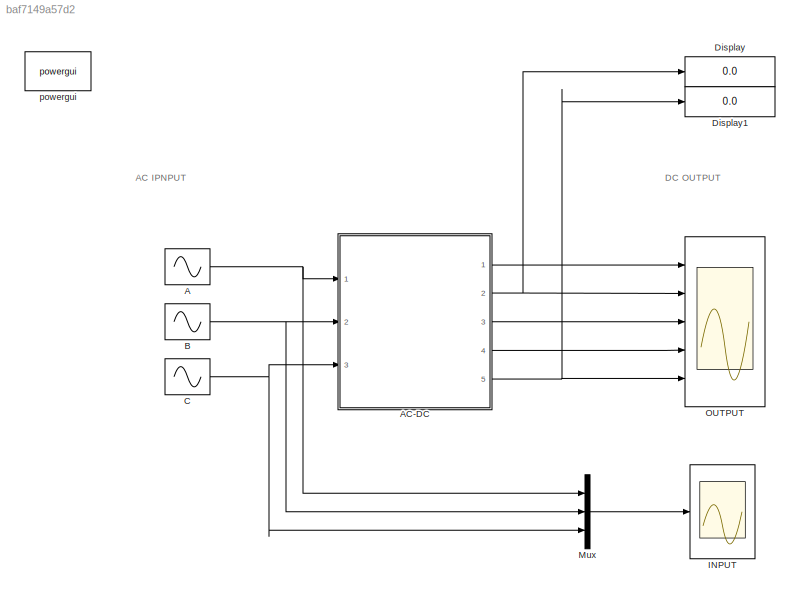
MODEL slx_baf7149a57d2
KIND model
CONFIG AbsTol = auto
CONFIG FixedStep = auto
CONFIG MaxStep = auto
CONFIG MinStep = auto
CONFIG RelTol = 1e-3
CONFIG SampleTimeConstraint = Unconstrained
CONFIG Solver = ode45
CONFIG SolverMode = Auto
CONFIG SolverName = ode45
CONFIG StartTime = 0.0
CONFIG StopTime = 0.1
BLOCK [Sin] A
  Amplitude = 230
  Frequency = 2*pi*60
  Ports = [0, 1]
  SampleTime = 0
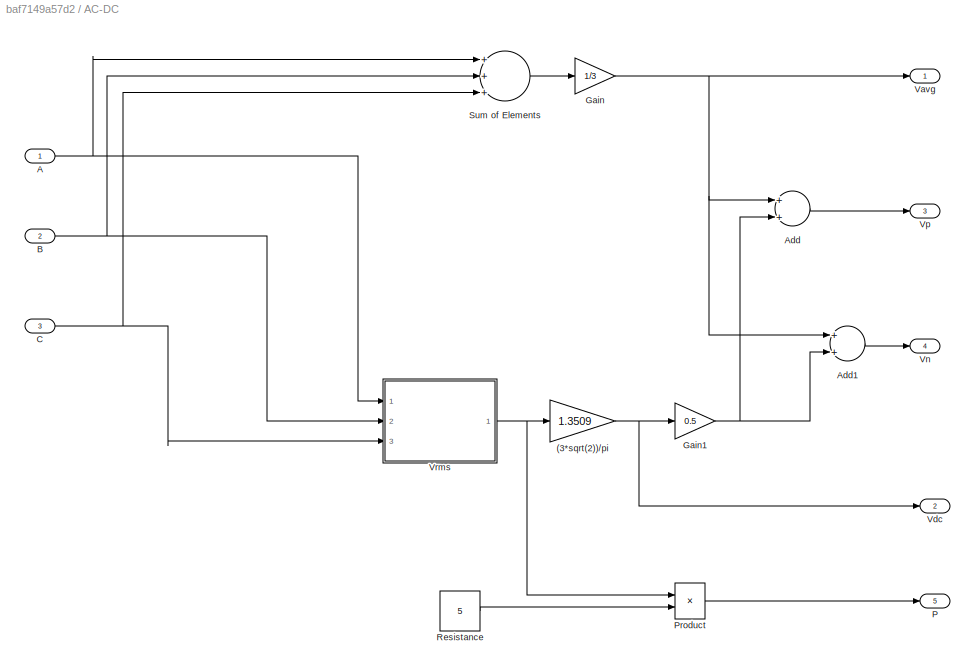
BLOCK [SubSystem] AC-DC
  Ports = [3, 5]
  RequestExecContextInheritance = off
BLOCK [Gain] AC-DC/(3*sqrt(2))//pi
  Gain = 1.3509
  OutDataTypeStr = Inherit: Inherit via internal rule
  ParamDataTypeStr = Inherit: Inherit via internal rule
  SaturateOnIntegerOverflow = off
BLOCK [Inport] AC-DC/A
  IconDisplay = Port number
BLOCK [Sum] AC-DC/Add
  InputSameDT = off
  OutDataTypeStr = Inherit: Inherit via internal rule
  Ports = [2, 1]
  SaturateOnIntegerOverflow = off
BLOCK [Sum] AC-DC/Add1
  InputSameDT = off
  OutDataTypeStr = Inherit: Inherit via internal rule
  Ports = [2, 1]
  SaturateOnIntegerOverflow = off
BLOCK [Inport] AC-DC/B
  IconDisplay = Port number
  Port = 2
BLOCK [Inport] AC-DC/C
  IconDisplay = Port number
  Port = 3
BLOCK [Gain] AC-DC/Gain
  Gain = 1/3
  OutDataTypeStr = Inherit: Inherit via internal rule
  ParamDataTypeStr = Inherit: Inherit via internal rule
  SaturateOnIntegerOverflow = off
BLOCK [Gain] AC-DC/Gain1
  Gain = 0.5
  OutDataTypeStr = Inherit: Inherit via internal rule
  ParamDataTypeStr = Inherit: Inherit via internal rule
  SaturateOnIntegerOverflow = off
BLOCK [Outport] AC-DC/P
  IconDisplay = Port number
  Port = 5
BLOCK [Product] AC-DC/Product
  InputSameDT = off
  OutDataTypeStr = Inherit: Inherit via internal rule
  Ports = [2, 1]
  RndMeth = Floor
  SaturateOnIntegerOverflow = off
BLOCK [Constant] AC-DC/Resistance
  Value = 5
BLOCK [Sum] AC-DC/Sum of Elements
  InputSameDT = off
  Inputs = +++
  OutDataTypeStr = Inherit: Inherit via internal rule
  Ports = [3, 1]
  SaturateOnIntegerOverflow = off
BLOCK [Outport] AC-DC/Vavg
  IconDisplay = Port number
BLOCK [Outport] AC-DC/Vdc
  IconDisplay = Port number
  Port = 2
BLOCK [Outport] AC-DC/Vn
  IconDisplay = Port number
  Port = 4
BLOCK [Outport] AC-DC/Vp
  IconDisplay = Port number
  Port = 3
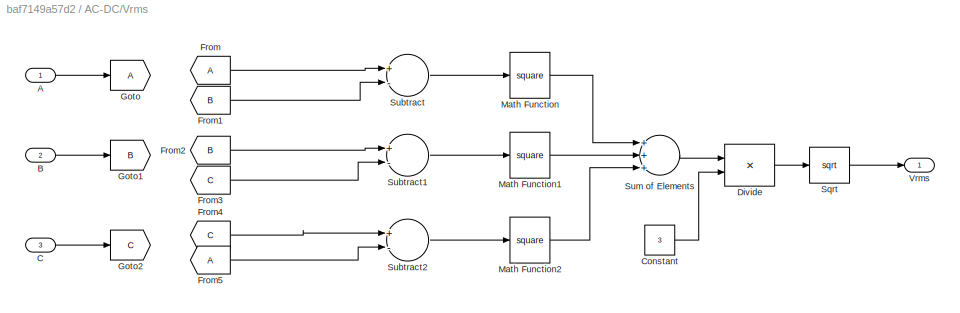
BLOCK [SubSystem] AC-DC/Vrms
  Ports = [3, 1]
  RequestExecContextInheritance = off
BLOCK [Inport] AC-DC/Vrms/A
  IconDisplay = Port number
BLOCK [Inport] AC-DC/Vrms/B
  IconDisplay = Port number
  Port = 2
BLOCK [Inport] AC-DC/Vrms/C
  IconDisplay = Port number
  Port = 3
BLOCK [Constant] AC-DC/Vrms/Constant
  Value = 3
BLOCK [Product] AC-DC/Vrms/Divide
  InputSameDT = off
  Inputs = */
  OutDataTypeStr = Inherit: Inherit via internal rule
  Ports = [2, 1]
  RndMeth = Floor
  SaturateOnIntegerOverflow = off
BLOCK [From] AC-DC/Vrms/From
BLOCK [From] AC-DC/Vrms/From1
  GotoTag = B
BLOCK [From] AC-DC/Vrms/From2
  GotoTag = B
BLOCK [From] AC-DC/Vrms/From3
  GotoTag = C
BLOCK [From] AC-DC/Vrms/From4
  GotoTag = C
BLOCK [From] AC-DC/Vrms/From5
BLOCK [Goto] AC-DC/Vrms/Goto
BLOCK [Goto] AC-DC/Vrms/Goto1
  GotoTag = B
BLOCK [Goto] AC-DC/Vrms/Goto2
  GotoTag = C
BLOCK [Math] AC-DC/Vrms/Math Function
  Operator = square
  Ports = [1, 1]
BLOCK [Math] AC-DC/Vrms/Math Function1
  Operator = square
  Ports = [1, 1]
BLOCK [Math] AC-DC/Vrms/Math Function2
  Operator = square
  Ports = [1, 1]
BLOCK [Sqrt] AC-DC/Vrms/Sqrt
BLOCK [Sum] AC-DC/Vrms/Subtract
  InputSameDT = off
  Inputs = +-
  OutDataTypeStr = Inherit: Inherit via internal rule
  Ports = [2, 1]
  SaturateOnIntegerOverflow = off
BLOCK [Sum] AC-DC/Vrms/Subtract1
  InputSameDT = off
  Inputs = +-
  OutDataTypeStr = Inherit: Inherit via internal rule
  Ports = [2, 1]
  SaturateOnIntegerOverflow = off
BLOCK [Sum] AC-DC/Vrms/Subtract2
  InputSameDT = off
  Inputs = +-
  OutDataTypeStr = Inherit: Inherit via internal rule
  Ports = [2, 1]
  SaturateOnIntegerOverflow = off
BLOCK [Sum] AC-DC/Vrms/Sum of Elements
  InputSameDT = off
  Inputs = +++
  OutDataTypeStr = Inherit: Inherit via internal rule
  Ports = [3, 1]
  SaturateOnIntegerOverflow = off
BLOCK [Outport] AC-DC/Vrms/Vrms
  IconDisplay = Port number
BLOCK [Sin] B
  Amplitude = 230
  Frequency = 2*pi*60
  Phase = 2*pi/3
  Ports = [0, 1]
  SampleTime = 0
BLOCK [Sin] C
  Amplitude = 230
  Frequency = 2*pi*60
  Phase = 4*pi/3
  Ports = [0, 1]
  SampleTime = 0
BLOCK [Display] Display
  Decimation = 1
  Ports = [1]
BLOCK [Display] Display1
  Decimation = 1
  Ports = [1]
BLOCK [Scope] INPUT
  Floating = off
  LimitDataPoints = off
  NumInputPorts = 1
  Ports = [1]
  SaveName = ScopeData1
  ZoomMode = xonly
BLOCK [Mux] Mux
  DisplayOption = bar
  Inputs = 3
  Ports = [3, 1]
BLOCK [Scope] OUTPUT
  Floating = off
  LimitDataPoints = off
  NumInputPorts = 5
  Ports = [5]
  YMax = 5~5~5~5~5
  YMin = -5~-5~-5~-5~-5
BLOCK [Reference] powergui  REF=powerlib/powergui
  DisableRonSwitches = off
  DisableSnubberDevices = off
  DisableVfSwitches = off
  DisplayEquations = off
  DisplayStyle = 1
  EnableUseOfTLC = off
  ErrMax = 1e-4
  Frange = [0:2:500]
  FreqAxis = off
  FunctionMessages = off
  HookPort = off
  Interpol = off
  Iterations = 50
  MaxFrequency = 1000
  Pbase = 100e6
  Ports = []
  Priority = 1
  ResistiveCurrentMeasurement = off
  RestoreLinks = warning
  RmsSteady = 1
  SPID = off
  SampleTime = 50e-6
  ShowGrid = off
  SolverType = Tustin/Backward Euler (TBE)
  SourceBlock = powerlib/powergui
  SourceType = PSB option menu block
  StartTime = 0.0
  SwTol = 0
  Ts = 100
  UnitsV = kV
  UnitsW = MW
  UserDataPersistent = on
  Xlog = on
  Ylog = off
  ZoomFFT = off
  buscounter = 0
  cycles = 1
  display = off
  echomessages = off
  frequency = 60
  frequencyindice = 60
  frequencyindicesteady = 1
  fundamental = 60
  methode = off
  save = off
  structure = 0
  variable = ZData
  x0status = blocks
ANNOTATION (root): AC IPNPUT
ANNOTATION (root): DC OUTPUT
NET A:1 -> AC-DC:1, Mux:1
NET AC-DC/(3*sqrt(2))//pi:1 -> AC-DC/Gain1:1, AC-DC/Vdc:1
NET AC-DC/A:1 -> AC-DC/Sum of Elements:1, AC-DC/Vrms:1
LINE AC-DC/Add1:1 -> AC-DC/Vn:1
LINE AC-DC/Add:1 -> AC-DC/Vp:1
NET AC-DC/B:1 -> AC-DC/Sum of Elements:2, AC-DC/Vrms:2
NET AC-DC/C:1 -> AC-DC/Sum of Elements:3, AC-DC/Vrms:3
NET AC-DC/Gain1:1 -> AC-DC/Add1:2, AC-DC/Add:2
NET AC-DC/Gain:1 -> AC-DC/Add1:1, AC-DC/Add:1, AC-DC/Vavg:1
LINE AC-DC/Product:1 -> AC-DC/P:1
LINE AC-DC/Resistance:1 -> AC-DC/Product:2
LINE AC-DC/Sum of Elements:1 -> AC-DC/Gain:1
LINE AC-DC/Vrms/A:1 -> AC-DC/Vrms/Goto:1
LINE AC-DC/Vrms/B:1 -> AC-DC/Vrms/Goto1:1
LINE AC-DC/Vrms/C:1 -> AC-DC/Vrms/Goto2:1
LINE AC-DC/Vrms/Constant:1 -> AC-DC/Vrms/Divide:2
LINE AC-DC/Vrms/Divide:1 -> AC-DC/Vrms/Sqrt:1
LINE AC-DC/Vrms/From1:1 -> AC-DC/Vrms/Subtract:2
LINE AC-DC/Vrms/From2:1 -> AC-DC/Vrms/Subtract1:1
LINE AC-DC/Vrms/From3:1 -> AC-DC/Vrms/Subtract1:2
LINE AC-DC/Vrms/From4:1 -> AC-DC/Vrms/Subtract2:1
LINE AC-DC/Vrms/From5:1 -> AC-DC/Vrms/Subtract2:2
LINE AC-DC/Vrms/From:1 -> AC-DC/Vrms/Subtract:1
LINE AC-DC/Vrms/Math Function1:1 -> AC-DC/Vrms/Sum of Elements:2
LINE AC-DC/Vrms/Math Function2:1 -> AC-DC/Vrms/Sum of Elements:3
LINE AC-DC/Vrms/Math Function:1 -> AC-DC/Vrms/Sum of Elements:1
LINE AC-DC/Vrms/Sqrt:1 -> AC-DC/Vrms/Vrms:1
LINE AC-DC/Vrms/Subtract1:1 -> AC-DC/Vrms/Math Function1:1
LINE AC-DC/Vrms/Subtract2:1 -> AC-DC/Vrms/Math Function2:1
LINE AC-DC/Vrms/Subtract:1 -> AC-DC/Vrms/Math Function:1
LINE AC-DC/Vrms/Sum of Elements:1 -> AC-DC/Vrms/Divide:1
NET AC-DC/Vrms:1 -> AC-DC/(3*sqrt(2))//pi:1, AC-DC/Product:1
LINE AC-DC:1 -> OUTPUT:1
NET AC-DC:2 -> Display:1, OUTPUT:2
LINE AC-DC:3 -> OUTPUT:3
LINE AC-DC:4 -> OUTPUT:4
NET AC-DC:5 -> Display1:1, OUTPUT:5
NET B:1 -> AC-DC:2, Mux:2
NET C:1 -> AC-DC:3, Mux:3
LINE Mux:1 -> INPUT:1
note: NET lines group one-source signal fan-out (src -> all destinations, sorted); 1:1 wires keep LINE
